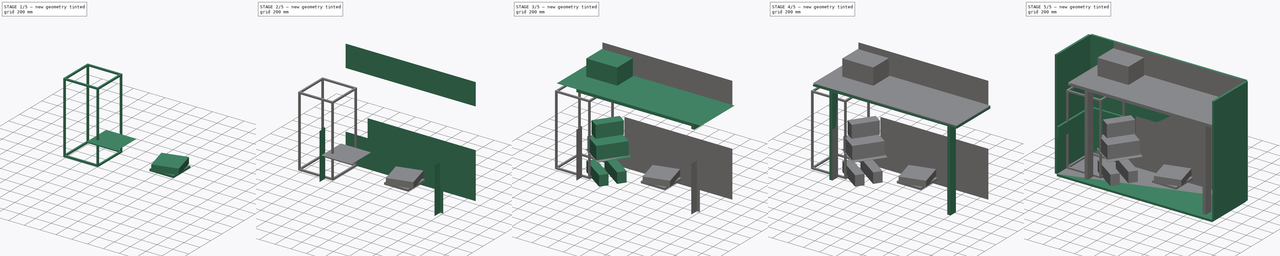
[diagram: build sequence overview — one tinted view per stage of 5, left to right]
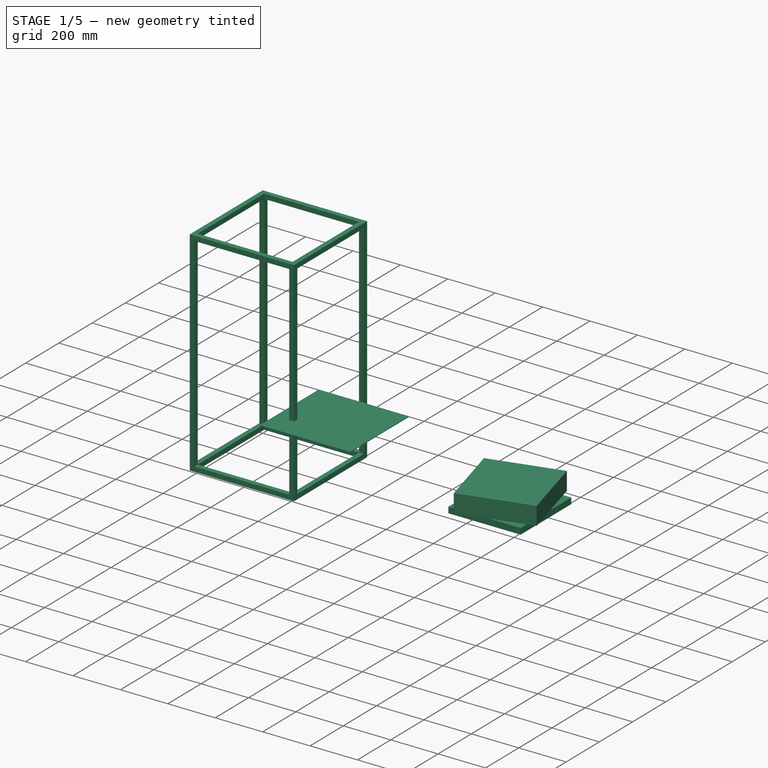
[diagram: stage 1 of 5 — iso view after this stage's code; geometry added in this stage tinted green]
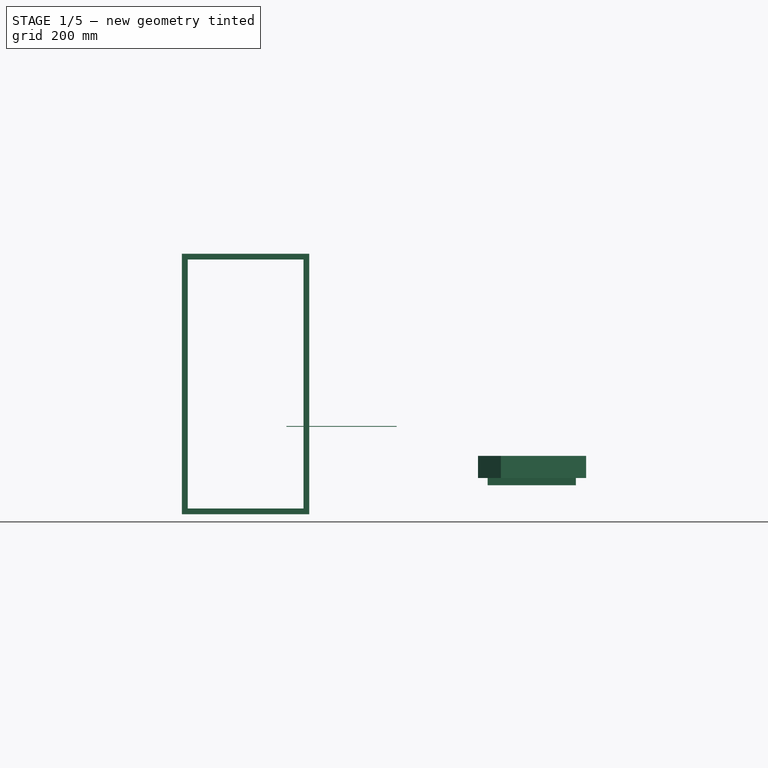
[diagram: stage 1 of 5 — front view after this stage's code; geometry added in this stage tinted green]
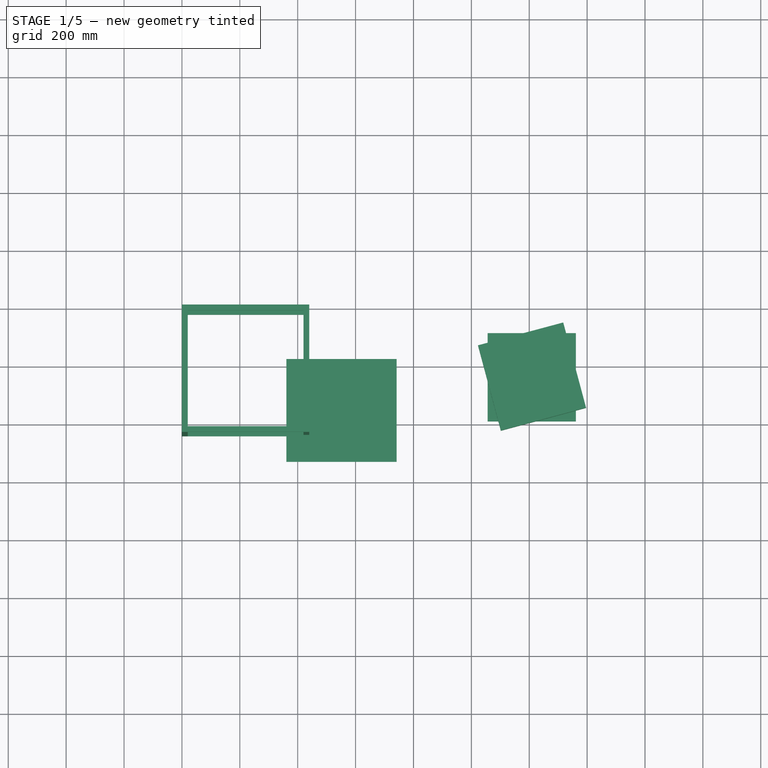
[diagram: stage 1 of 5 — top view after this stage's code; geometry added in this stage tinted green]
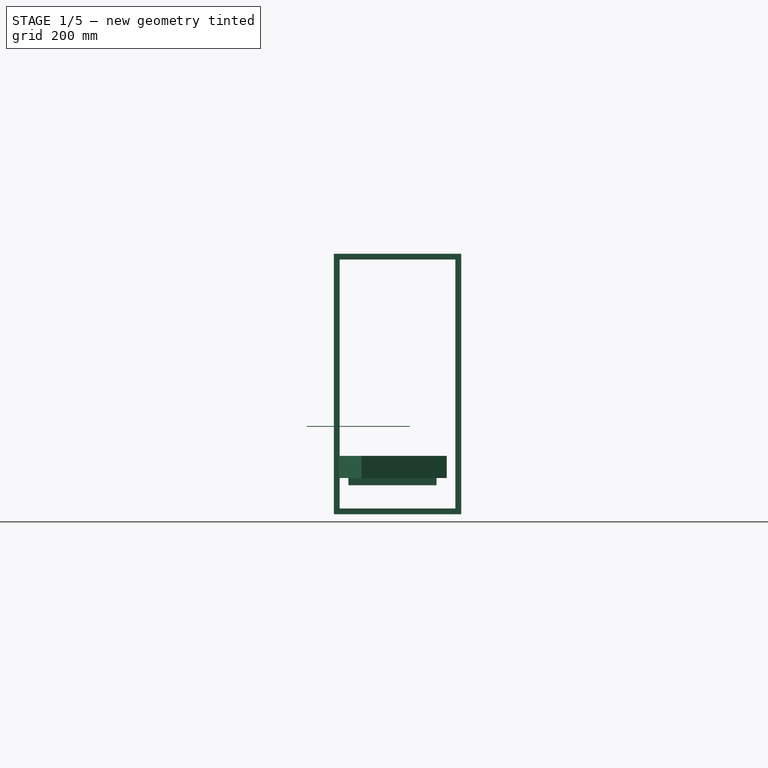
[diagram: stage 1 of 5 — right view after this stage's code; geometry added in this stage tinted green]
FCSTD DOCUMENT  (FreeCAD 1.1R20260108 (Git shallow))
Label: LabSpace
License: All rights reserved
LicenseURL: https://en.wikipedia.org/wiki/All_rights_reserved
objects: Part::Box×30, Part::MultiFuse×7, Sketcher::SketchObject×6, PartDesign::Pocket×5, App::Point×1, PartDesign::Pad×1, PartDesign::Body×1, App::DocumentObjectGroup×1
note: 68 computed .brp shape members not serialized (recipe doc carries the construction recipe); baked Part::Feature solids carry a one-line shape summary decoded from their .brp

FEATURE [App::Point] Origin001
  Role = Origin
FEATURE [Sketcher::SketchObject] Sketch
  ArcFitTolerance = 1e-06
  AttachmentSupport = -> [Origin]
  ExternalTypes = [0]
  FullyConstrained = true
  MakeInternals = false
  MapMode = 5
  Placement = pos=(0,0,0) rot=(1,0,0;1.5708rad)
  sketch-geometry (4):
    g0: LineSegment StartX=0 StartY=0 StartZ=0 EndX=440 EndY=0 EndZ=0
    g1: LineSegment StartX=440 StartY=0 StartZ=0 EndX=440 EndY=900 EndZ=0
    g2: LineSegment StartX=440 StartY=900 StartZ=0 EndX=0 EndY=900 EndZ=0
    g3: LineSegment StartX=0 StartY=900 StartZ=0 EndX=0 EndY=0 EndZ=0
  constraints (11):
    c: Coincident(g0,g1)
    c: Coincident(g1,g2)
    c: Coincident(g2,g3)
    c: Coincident(g3,g0)
    c: Horizontal(g0)
    c: Horizontal(g2)
    c: Vertical(g1)
    c: Vertical(g3)
    c: Coincident(g0,g-1)
    c: DistanceY(g1,g1) = 900
    c: DistanceX(g2,g2) = 440
FEATURE [PartDesign::Pad] Pad
  Direction = (0,-1,2e-16)
  Length = 440
  Length2 = 10
  Profile = -> Sketch
  ReferenceAxis = -> Sketch [N_Axis]
  Refine = true
  SideType = 0
  Suppressed = false
  Type = 0
  Type2 = 0
FEATURE [Sketcher::SketchObject] Sketch001
  ArcFitTolerance = 1e-06
  AttachmentSupport = -> [Pad]
  ExternalGeometry = -> [Pad]
  ExternalTypes = [0]
  FullyConstrained = true
  MakeInternals = false
  MapMode = 5
  Placement = pos=(0,-440,0) rot=(1,0,0;1.5708rad)
  sketch-geometry (8):
    g0: LineSegment StartX=20 StartY=20 StartZ=0 EndX=420 EndY=20 EndZ=0
    g1: LineSegment StartX=420 StartY=20 StartZ=0 EndX=420 EndY=880 EndZ=0
    g2: LineSegment StartX=420 StartY=880 StartZ=0 EndX=20 EndY=880 EndZ=0
    g3: LineSegment StartX=20 StartY=880 StartZ=0 EndX=20 EndY=20 EndZ=0
    g4: LineSegment StartX=440 StartY=900 StartZ=0 EndX=0 EndY=900 EndZ=0
    g5: LineSegment StartX=0 StartY=900 StartZ=0 EndX=0 EndY=0 EndZ=0
    g6: LineSegment StartX=0 StartY=0 StartZ=0 EndX=440 EndY=0 EndZ=0
    g7: LineSegment StartX=440 StartY=0 StartZ=0 EndX=440 EndY=900 EndZ=0
  constraints (22):
    c: Coincident(g0,g1)
    c: Coincident(g1,g2)
    c: Coincident(g2,g3)
    c: Coincident(g3,g0)
    c: Horizontal(g0)
    c: Horizontal(g2)
    c: Vertical(g1)
    c: Vertical(g3)
    c: DistanceX(g-6,g0) = 20
    c: DistanceY(g-6,g0) = 20
    c: DistanceX(g1,g-5) = 20
    c: DistanceY(g1,g-5) = 20
    c: Coincident(g4,g5)
    c: Coincident(g5,g6)
    c: Coincident(g6,g7)
    c: Coincident(g7,g4)
    c: Horizontal(g4)
    c: Horizontal(g6)
    c: Vertical(g5)
    c: Vertical(g7)
    c: Coincident(g4,g-5)
    c: Coincident(g5,g-6)
FEATURE [PartDesign::Pocket] Pocket
  BaseFeature = -> Pad
  Direction = (0,1,-2e-16)
  Length = 5
  Length2 = 5
  Profile = -> Sketch001
  ReferenceAxis = -> Sketch001 [N_Axis]
  Refine = true
  SideType = 0
  Suppressed = false
  Type = 1
  Type2 = 0
FEATURE [Sketcher::SketchObject] Sketch002
  ArcFitTolerance = 1e-06
  AttachmentSupport = -> [Pocket]
  ExternalGeometry = -> [Pocket]
  ExternalTypes = [0]
  FullyConstrained = true
  MakeInternals = false
  MapMode = 5
  Placement = pos=(440,0,0) rot=(0.57735,0.57735,0.57735;2.0944rad)
  sketch-geometry (8):
    g0: LineSegment StartX=-440 StartY=1.137e-13 StartZ=0 EndX=1.137e-13 EndY=1.137e-13 EndZ=0
    g1: LineSegment StartX=1.137e-13 StartY=1.137e-13 StartZ=0 EndX=1.137e-13 EndY=900 EndZ=0
    g2: LineSegment StartX=1.137e-13 StartY=900 StartZ=0 EndX=-440 EndY=900 EndZ=0
    g3: LineSegment StartX=-440 StartY=900 StartZ=0 EndX=-440 EndY=1.137e-13 EndZ=0
    g4: LineSegment StartX=-420 StartY=20 StartZ=0 EndX=-20 EndY=20 EndZ=0
    g5: LineSegment StartX=-20 StartY=20 StartZ=0 EndX=-20 EndY=880 EndZ=0
    g6: LineSegment StartX=-20 StartY=880 StartZ=0 EndX=-420 EndY=880 EndZ=0
    g7: LineSegment StartX=-420 StartY=880 StartZ=0 EndX=-420 EndY=20 EndZ=0
  constraints (22):
    c: Coincident(g0,g1)
    c: Coincident(g1,g2)
    c: Coincident(g2,g3)
    c: Coincident(g3,g0)
    c: Horizontal(g0)
    c: Horizontal(g2)
    c: Vertical(g1)
    c: Vertical(g3)
    c: Coincident(g0,g-6)
    c: Coincident(g1,g-5)
    c: Coincident(g4,g5)
    c: Coincident(g5,g6)
    c: Coincident(g6,g7)
    c: Coincident(g7,g4)
    c: Horizontal(g4)
    c: Horizontal(g6)
    c: Vertical(g5)
    c: Vertical(g7)
    c: DistanceX(g0,g4) = 20
    c: DistanceY(g0,g4) = 20
    c: DistanceX(g5,g1) = 20
    c: DistanceY(g5,g1) = 20
FEATURE [PartDesign::Pocket] Pocket001
  BaseFeature = -> Pocket
  Direction = (-1,0,0)
  Length = 5
  Length2 = 5
  Profile = -> Sketch002
  ReferenceAxis = -> Sketch002 [N_Axis]
  Refine = true
  SideType = 0
  Suppressed = false
  Type = 3
  Type2 = 0
  UpToFace = -> Pocket [Face9]
FEATURE [Sketcher::SketchObject] Sketch003
  ArcFitTolerance = 1e-06
  AttachmentSupport = -> [Pocket001]
  ExternalGeometry = -> [Pocket001]
  ExternalTypes = [0]
  FullyConstrained = true
  MakeInternals = false
  MapMode = 5
  Placement = pos=(0,0,0) rot=(0.57735,-0.57735,-0.57735;2.0944rad)
  sketch-geometry (8):
    g0: LineSegment StartX=0 StartY=0 StartZ=0 EndX=440 EndY=0 EndZ=0
    g1: LineSegment StartX=440 StartY=0 StartZ=0 EndX=440 EndY=900 EndZ=0
    g2: LineSegment StartX=440 StartY=900 StartZ=0 EndX=0 EndY=900 EndZ=0
    g3: LineSegment StartX=0 StartY=900 StartZ=0 EndX=0 EndY=0 EndZ=0
    g4: LineSegment StartX=20 StartY=20 StartZ=0 EndX=420 EndY=20 EndZ=0
    g5: LineSegment StartX=420 StartY=20 StartZ=0 EndX=420 EndY=880 EndZ=0
    g6: LineSegment StartX=420 StartY=880 StartZ=0 EndX=20 EndY=880 EndZ=0
    g7: LineSegment StartX=20 StartY=880 StartZ=0 EndX=20 EndY=20 EndZ=0
  constraints (22):
    c: Coincident(g0,g1)
    c: Coincident(g1,g2)
    c: Coincident(g2,g3)
    c: Coincident(g3,g0)
    c: Horizontal(g0)
    c: Horizontal(g2)
    c: Vertical(g1)
    c: Vertical(g3)
    c: Coincident(g0,g-5)
    c: Coincident(g1,g-6)
    c: Coincident(g4,g5)
    c: Coincident(g5,g6)
    c: Coincident(g6,g7)
    c: Coincident(g7,g4)
    c: Horizontal(g4)
    c: Horizontal(g6)
    c: Vertical(g5)
    c: Vertical(g7)
    c: DistanceX(g0,g4) = 20
    c: DistanceY(g0,g4) = 20
    c: DistanceX(g5,g1) = 20
    c: DistanceY(g5,g1) = 20
FEATURE [PartDesign::Pocket] Pocket002
  BaseFeature = -> Pocket001
  Direction = (1,0,0)
  Length = 5
  Length2 = 5
  Profile = -> Sketch003
  ReferenceAxis = -> Sketch003 [N_Axis]
  Refine = true
  SideType = 0
  Suppressed = false
  Type = 3
  Type2 = 0
  UpToFace = -> Pocket001 [Face9]
FEATURE [Sketcher::SketchObject] Sketch004
  ArcFitTolerance = 1e-06
  AttachmentSupport = -> [Pocket002]
  ExternalGeometry = -> [Pocket002]
  ExternalTypes = [0]
  FullyConstrained = true
  MakeInternals = false
  MapMode = 5
  Placement = pos=(0,1.998e-13,900) rot=(0,0,1;0rad)
  sketch-geometry (8):
    g0: LineSegment StartX=0 StartY=0 StartZ=0 EndX=0 EndY=-440 EndZ=0
    g1: LineSegment StartX=0 StartY=-440 StartZ=0 EndX=440 EndY=-440 EndZ=0
    g2: LineSegment StartX=440 StartY=-440 StartZ=0 EndX=440 EndY=0 EndZ=0
    g3: LineSegment StartX=440 StartY=0 StartZ=0 EndX=0 EndY=0 EndZ=0
    g4: LineSegment StartX=20 StartY=-20 StartZ=0 EndX=20 EndY=-420 EndZ=0
    g5: LineSegment StartX=20 StartY=-420 StartZ=0 EndX=420 EndY=-420 EndZ=0
    g6: LineSegment StartX=420 StartY=-420 StartZ=0 EndX=420 EndY=-20 EndZ=0
    g7: LineSegment StartX=420 StartY=-20 StartZ=0 EndX=20 EndY=-20 EndZ=0
  constraints (22):
    c: Coincident(g0,g1)
    c: Coincident(g1,g2)
    c: Coincident(g2,g3)
    c: Coincident(g3,g0)
    c: Vertical(g0)
    c: Vertical(g2)
    c: Horizontal(g1)
    c: Horizontal(g3)
    c: Coincident(g0,g-5)
    c: Coincident(g1,g-6)
    c: Coincident(g4,g5)
    c: Coincident(g5,g6)
    c: Coincident(g6,g7)
    c: Coincident(g7,g4)
    c: Vertical(g4)
    c: Vertical(g6)
    c: Horizontal(g5)
    c: Horizontal(g7)
    c: DistanceY(g4,g0) = 20
    c: DistanceX(g0,g4) = 20
    c: DistanceX(g5,g1) = 20
    c: DistanceY(g1,g5) = 20
FEATURE [PartDesign::Pocket] Pocket003
  BaseFeature = -> Pocket002
  Direction = (0,0,-1)
  Length = 5
  Length2 = 5
  Profile = -> Sketch004
  ReferenceAxis = -> Sketch004 [N_Axis]
  Refine = true
  SideType = 0
  Suppressed = false
  Type = 3
  Type2 = 0
  UpToFace = -> Pocket002 [Face15]
FEATURE [Sketcher::SketchObject] Sketch005
  ArcFitTolerance = 1e-06
  AttachmentSupport = -> [Pocket003]
  ExternalGeometry = -> [Pocket003]
  ExternalTypes = [0]
  FullyConstrained = true
  MakeInternals = false
  MapMode = 5
  Placement = pos=(0,0,0) rot=(1,0,0;3.14159rad)
  sketch-geometry (8):
    g0: LineSegment StartX=0 StartY=0 StartZ=0 EndX=440 EndY=0 EndZ=0
    g1: LineSegment StartX=440 StartY=0 StartZ=0 EndX=440 EndY=440 EndZ=0
    g2: LineSegment StartX=440 StartY=440 StartZ=0 EndX=0 EndY=440 EndZ=0
    g3: LineSegment StartX=0 StartY=440 StartZ=0 EndX=0 EndY=0 EndZ=0
    g4: LineSegment StartX=20 StartY=20 StartZ=0 EndX=420 EndY=20 EndZ=0
    g5: LineSegment StartX=420 StartY=20 StartZ=0 EndX=420 EndY=420 EndZ=0
    g6: LineSegment StartX=420 StartY=420 StartZ=0 EndX=20 EndY=420 EndZ=0
    g7: LineSegment StartX=20 StartY=420 StartZ=0 EndX=20 EndY=20 EndZ=0
  constraints (22):
    c: Coincident(g0,g1)
    c: Coincident(g1,g2)
    c: Coincident(g2,g3)
    c: Coincident(g3,g0)
    c: Horizontal(g0)
    c: Horizontal(g2)
    c: Vertical(g1)
    c: Vertical(g3)
    c: Coincident(g0,g-5)
    c: Coincident(g1,g-6)
    c: Coincident(g4,g5)
    c: Coincident(g5,g6)
    c: Coincident(g6,g7)
    c: Coincident(g7,g4)
    c: Horizontal(g4)
    c: Horizontal(g6)
    c: Vertical(g5)
    c: Vertical(g7)
    c: DistanceX(g0,g4) = 20
    c: DistanceY(g0,g4) = 20
    c: DistanceX(g5,g1) = 20
    c: DistanceY(g5,g1) = 20
FEATURE [PartDesign::Pocket] Pocket004
  BaseFeature = -> Pocket003
  Direction = (0,0,1)
  Length = 5
  Length2 = 5
  Profile = -> Sketch005
  ReferenceAxis = -> Sketch005 [N_Axis]
  Refine = true
  SideType = 0
  Suppressed = false
  Type = 3
  Type2 = 0
  UpToFace = -> Pocket003 [Face9]
FEATURE [PartDesign::Body] Body  label="AluminumTSlot"
  AllowCompound = false
  Group = -> [Sketch,Pad,Sketch001,Pocket,Sketch002,Pocket001,Sketch003,Pocket002,Sketch004,Pocket003,Sketch005,Pocket004]
  Origin = -> Origin
  Placement = pos=(986.2,-20,0) rot=(0,0,1;0rad)
  Tip = -> Pocket004
FEATURE [Part::Box] Box029  label="WoodBoard"
  AttacherType = Attacher::AttachEngine3D
  Height = 25.4
  Length = 304.8
  Placement = pos=(1056.2,-390,100) rot=(0,0,1;0rad)
  Width = 304.8
FEATURE [Part::Box] Box030  label="WoodWeightTuner"
  AttacherType = Attacher::AttachEngine3D
  Height = 76.2
  Length = 304.8
  Placement = pos=(1101.92,-423.02,125.4) rot=(0,0,1;0.261799rad)
  Width = 304.8
FEATURE [App::DocumentObjectGroup] Group  label="VibrationIsolation"
  Group = -> [Body,Box029,Box030]
FEATURE [Part::Box] Box031  label="Shelf"
  AttacherType = Attacher::AttachEngine3D
  Height = 2.54
  Length = 381
  Placement = pos=(360.68,-533.4,302.26) rot=(0,0,1;0rad)
  Width = 355.6
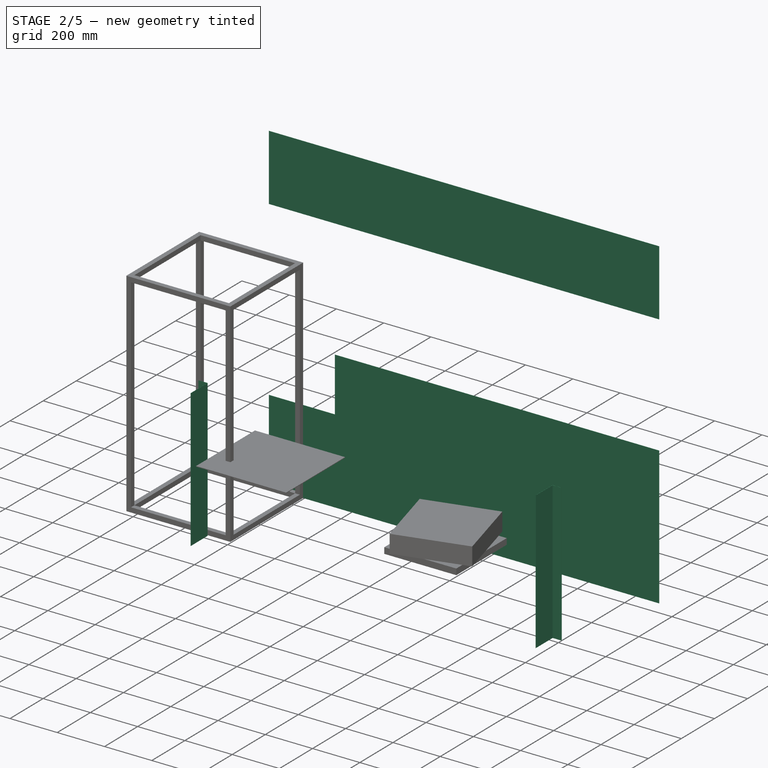
[diagram: stage 2 of 5 — iso view after this stage's code; geometry added in this stage tinted green]
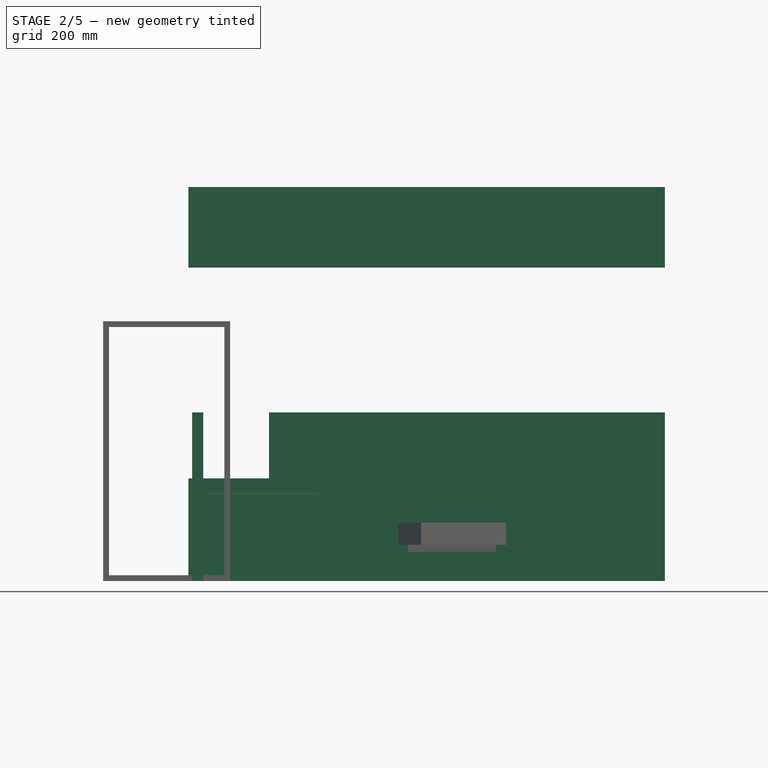
[diagram: stage 2 of 5 — front view after this stage's code; geometry added in this stage tinted green]
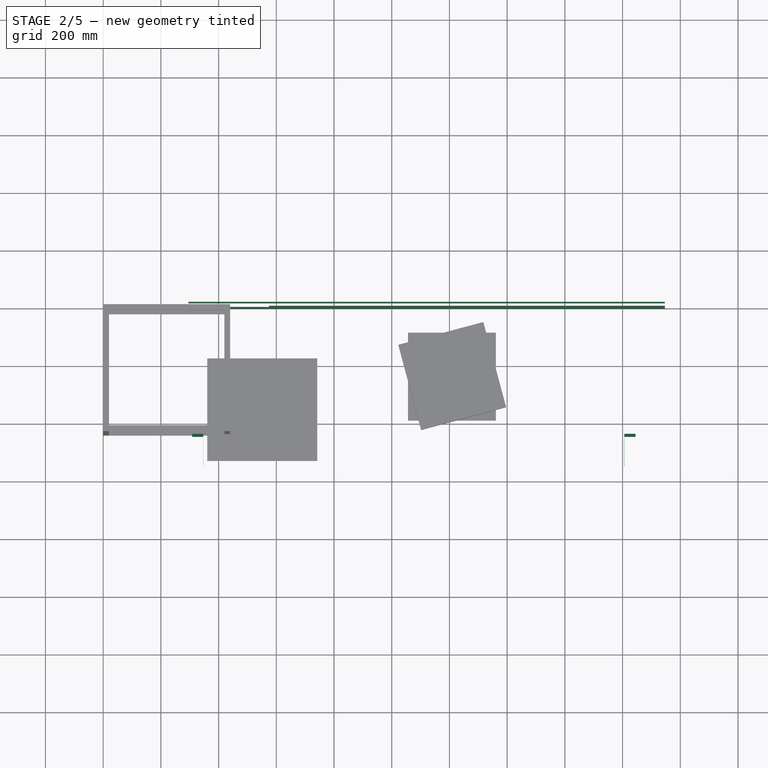
[diagram: stage 2 of 5 — top view after this stage's code; geometry added in this stage tinted green]
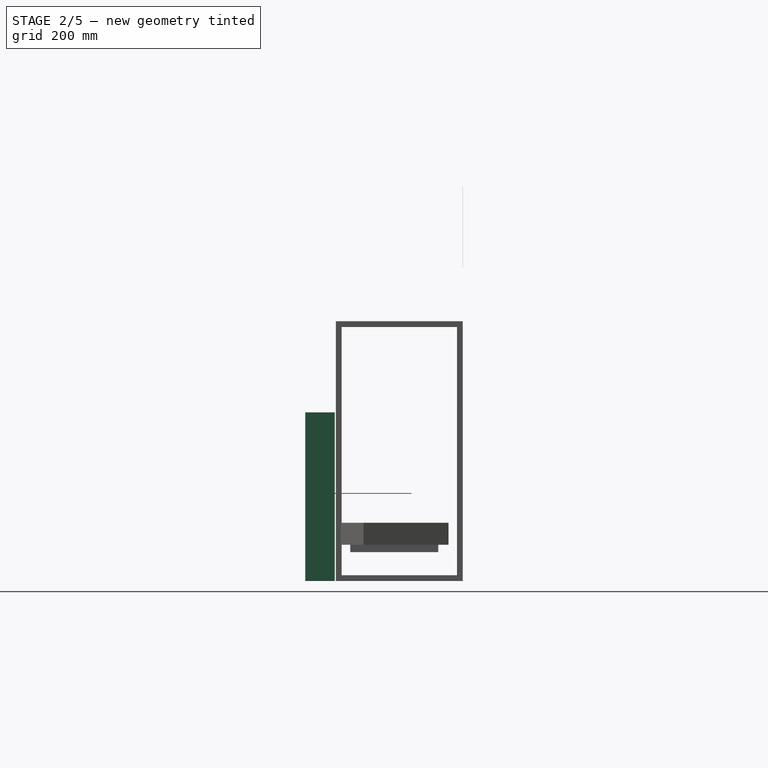
[diagram: stage 2 of 5 — right view after this stage's code; geometry added in this stage tinted green]
FEATURE [Part::Box] Box020  label="Cube009"
  AttacherType = Attacher::AttachEngine3D
  Height = 279.4
  Length = 1651
  Placement = pos=(295.402,-0.762,1085.85) rot=(0,0,1;0rad)
  Width = 0.762
  expr: .Placement.Base.x = 77.63 in - 66 in
FEATURE [Part::Box] Box021  label="Cube010"
  AttacherType = Attacher::AttachEngine3D
  Height = 584.2
  Length = 1371.6
  Placement = pos=(574.802,-0.762,0) rot=(0,0,1;0rad)
  Width = 0.762
  expr: .Placement.Base.x = 77.63 in - 55 in
FEATURE [Part::Box] Box022  label="Cube011"
  AttacherType = Attacher::AttachEngine3D
  Height = 355.6
  Length = 279.4
  Placement = pos=(295.402,-0.762,0) rot=(0,0,1;0rad)
  Width = 0.762
  expr: .Placement.Base.x = 77.63 in - 66 in
  expr: Length = 11 in
FEATURE [Part::Box] Box023  label="Cube012"
  AttacherType = Attacher::AttachEngine3D
  Height = 584.2
  Length = 38.1
  Placement = pos=(308.102,-444.5,0) rot=(0,0,1;0rad)
  Width = 0.762
FEATURE [Part::Box] Box025  label="Cube014"
  AttacherType = Attacher::AttachEngine3D
  Height = 584.2
  Length = 0.762
  Placement = pos=(346.202,-546.1,0) rot=(0,0,1;0rad)
  Width = 101.6
FEATURE [Part::Box] Box026  label="Cube015"
  AttacherType = Attacher::AttachEngine3D
  Height = 584.2
  Length = 38.1
  Placement = pos=(1806.7,-444.5,0) rot=(0,0,1;0rad)
  Width = 0.762
  expr: .Placement.Base.x = 12.13 in + 59 in
FEATURE [Part::Box] Box027  label="Cube016"
  AttacherType = Attacher::AttachEngine3D
  Height = 584.2
  Length = 0.762
  Placement = pos=(1805.94,-546.1,0) rot=(0,0,1;0rad)
  Width = 101.6
  expr: .Placement.Base.x = 12.1 in + 59 in
FEATURE [Part::MultiFuse] Fusion006  label="WallProtection"
  Refine = true
  Shapes = -> [Box027,Box020,Box021,Box022,Box023,Box025,Box026]
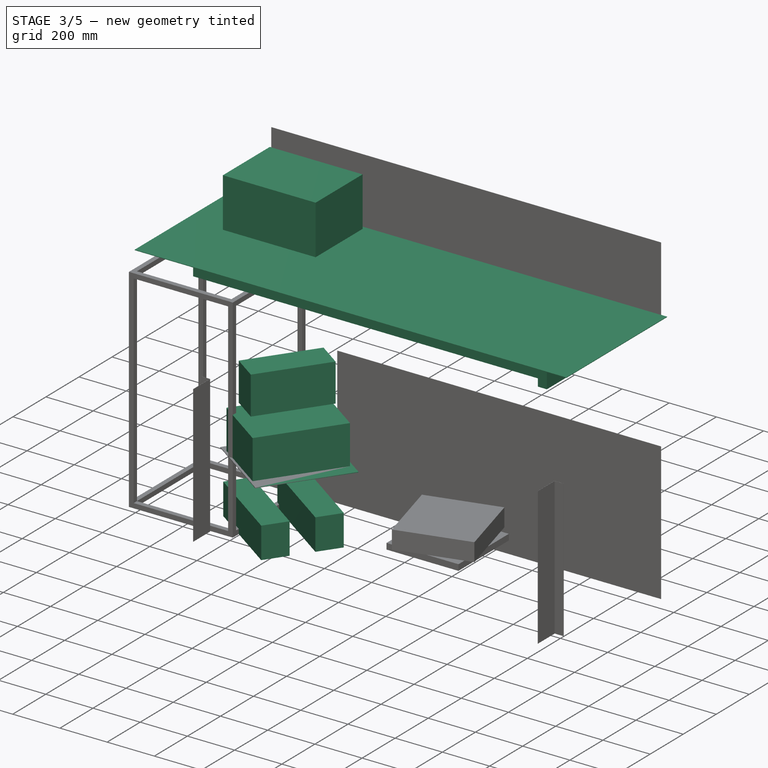
[diagram: stage 3 of 5 — iso view after this stage's code; geometry added in this stage tinted green]
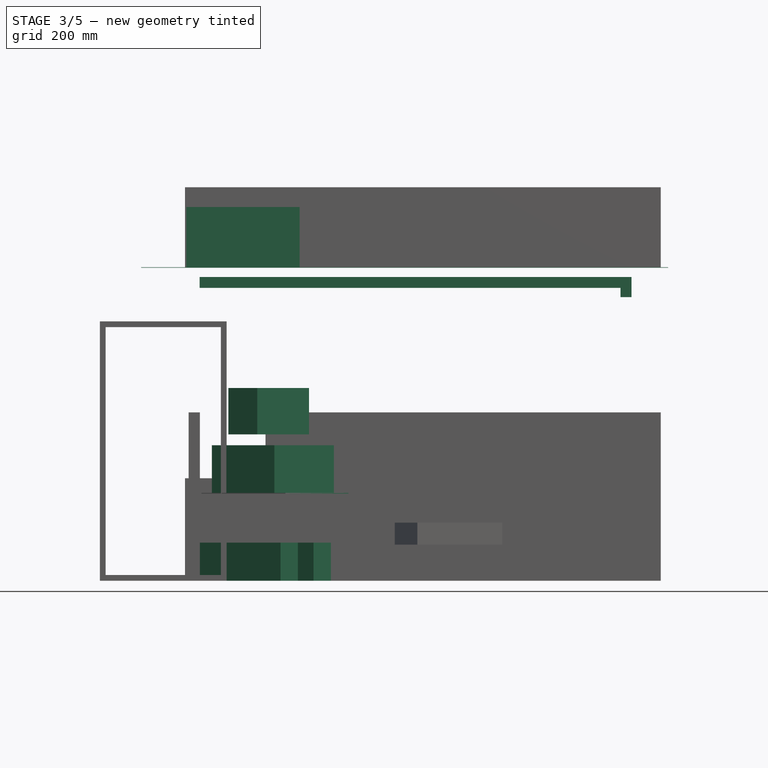
[diagram: stage 3 of 5 — front view after this stage's code; geometry added in this stage tinted green]
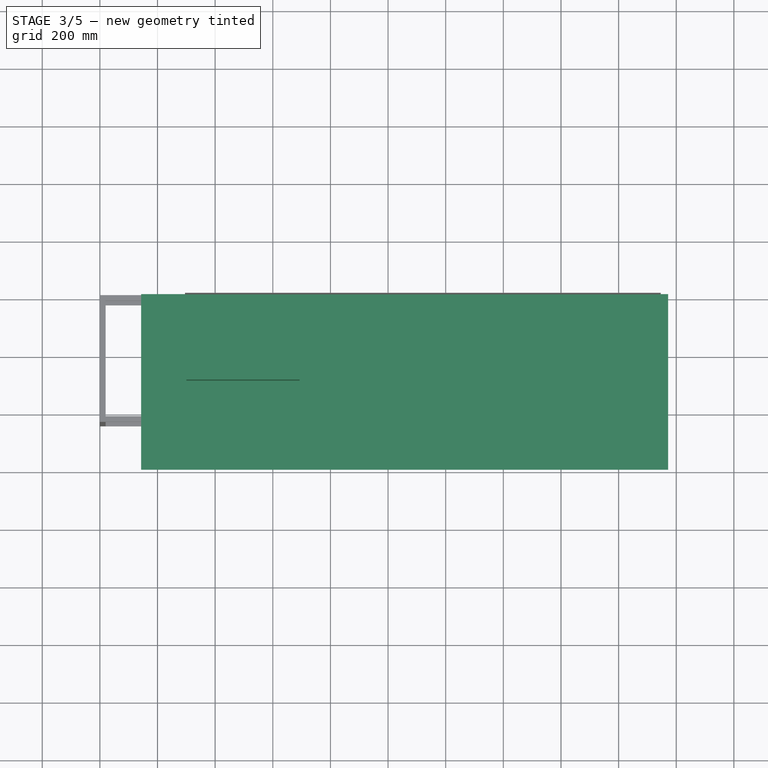
[diagram: stage 3 of 5 — top view after this stage's code; geometry added in this stage tinted green]
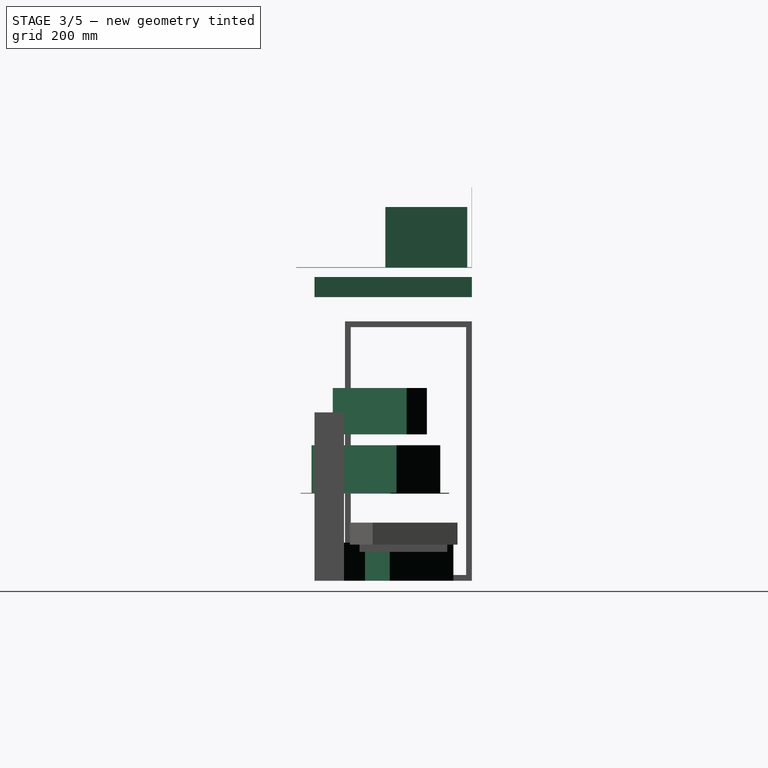
[diagram: stage 3 of 5 — right view after this stage's code; geometry added in this stage tinted green]
FEATURE [Part::Box] Box013  label="Cube007"
  AttacherType = Attacher::AttachEngine3D
  Height = 69.85
  Length = 38.1
  Placement = pos=(1806.7,-546.1,984.25) rot=(0,0,1;0rad)
  Width = 546.1
  expr: .Placement.Base.x = 77.63 in - 6.5 in
  expr: .Placement.Base.z = 38.75 in
  expr: Height = 41.5 in - 38.75 in
FEATURE [Part::Box] Box014  label="Cube008"
  AttacherType = Attacher::AttachEngine3D
  Height = 38.1
  Length = 1460.5
  Placement = pos=(346.202,-546.1,1016) rot=(0,0,1;0rad)
  Width = 101.6
  expr: .Placement.Base.x = 77.63 in - 64 in
  expr: Length = 64 in - 6.5 in
FEATURE [Part::Box] Box015  label="SiliconeMat"
  AttacherType = Attacher::AttachEngine3D
  Height = 2.032
  Length = 1828.8
  Placement = pos=(143.002,-609.6,1085.85) rot=(0,0,1;0rad)
  Width = 609.6
  expr: .Placement.Base.x = 77.63 in - 72 in
FEATURE [Part::Box] Box016  label="ReflowOven"
  AttacherType = Attacher::AttachEngine3D
  Height = 210.82
  Length = 392.938
  Placement = pos=(300,-300,1085.85) rot=(0,0,1;0rad)
  Width = 283.972
FEATURE [Part::Box] Box017  label="Matsusada_R4G650-0.1-Negative"
  AttacherType = Attacher::AttachEngine3D
  Height = 132
  Length = 385
  Placement = pos=(400,-100,0) rot=(0,0,1;-1.5708rad)
  Width = 105
FEATURE [Part::Box] Box018  label="Tekpower_TP-3005D-3"
  AttacherType = Attacher::AttachEngine3D
  Height = 165.1
  Length = 359.918
  Placement = pos=(370,-480,304.8) rot=(0,0,1;0rad)
  Width = 264.922
FEATURE [Part::Box] Box019  label="Matsusada_R4G650-0.1-Positive"
  AttacherType = Attacher::AttachEngine3D
  Height = 132
  Length = 385
  Placement = pos=(600,-100,0) rot=(0,0,1;-1.5708rad)
  Width = 105
FEATURE [Part::Box] Box028  label="Rigol_DS1102Z-E"
  AttacherType = Attacher::AttachEngine3D
  Height = 160.8
  Length = 313.1
  Placement = pos=(546.1,-482.6,508) rot=(0,0,1;0.959931rad)
  Width = 122.4
FEATURE [Part::MultiFuse] Fusion005  label="PowerSupplies"
  Placement = pos=(0,-584.2,0) rot=(0,0,1;0.959931rad)
  Refine = true
  Shapes = -> [Box018,Box019,Box017,Box031]
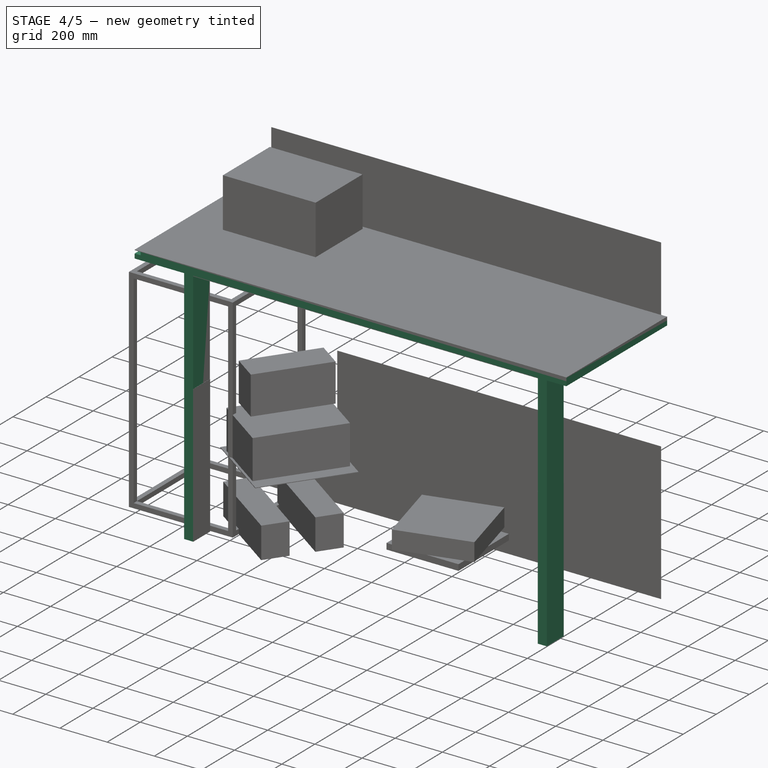
[diagram: stage 4 of 5 — iso view after this stage's code; geometry added in this stage tinted green]
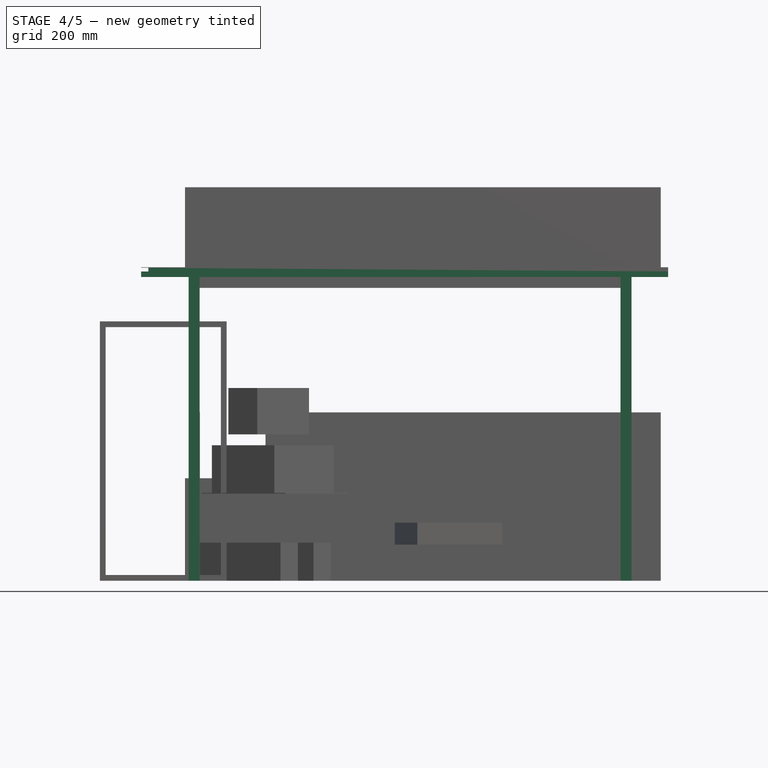
[diagram: stage 4 of 5 — front view after this stage's code; geometry added in this stage tinted green]
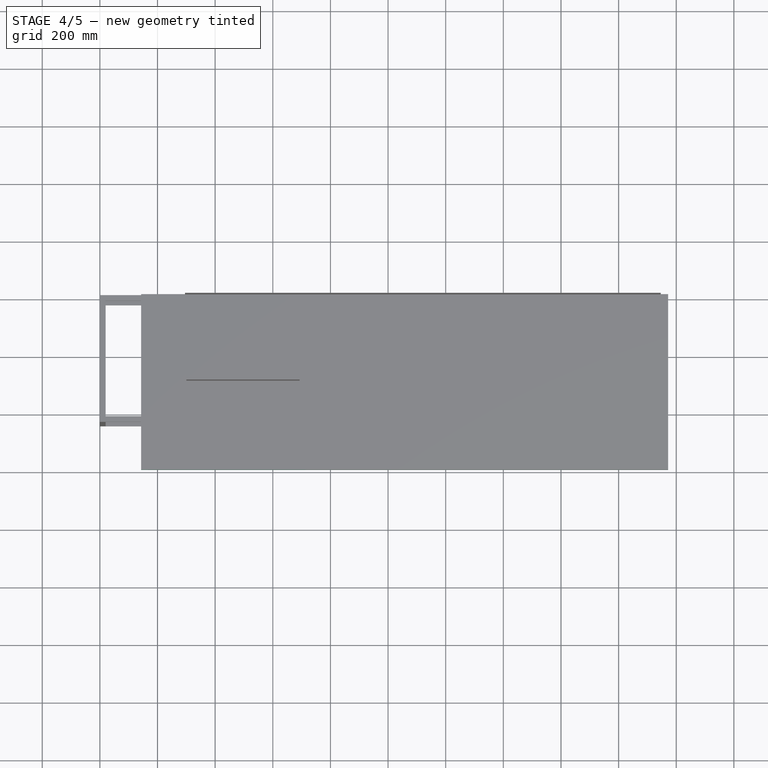
[diagram: stage 4 of 5 — top view after this stage's code; geometry added in this stage tinted green]
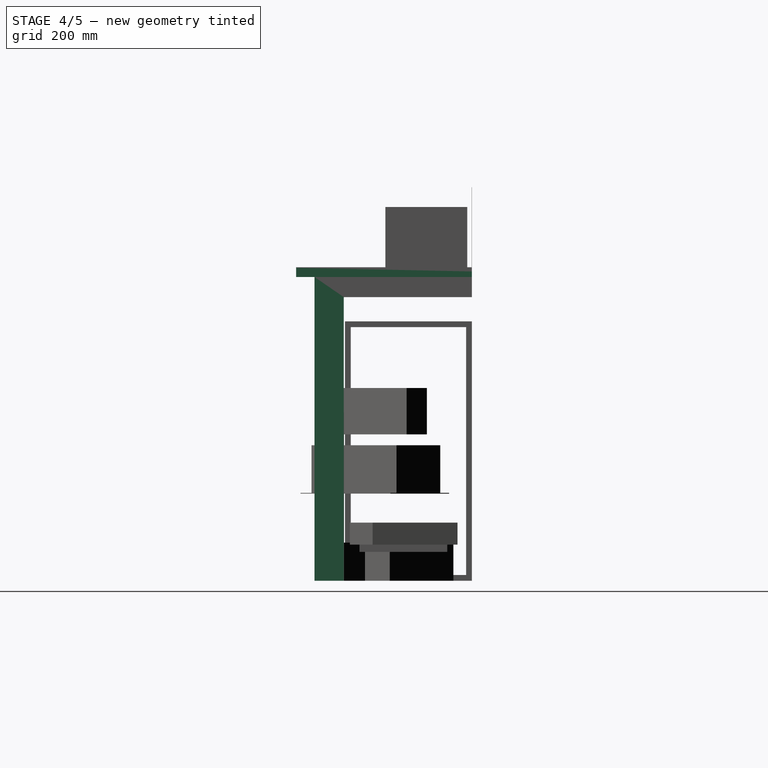
[diagram: stage 4 of 5 — right view after this stage's code; geometry added in this stage tinted green]
FEATURE [Part::Box] Box008  label="Cube002"
  AttacherType = Attacher::AttachEngine3D
  Height = 19.05
  Length = 1828.8
  Placement = pos=(142.875,-609.6,1054.1) rot=(0,0,1;0rad)
  Width = 609.6
FEATURE [Part::Box] Box009  label="Cube003"
  AttacherType = Attacher::AttachEngine3D
  Height = 12.7
  Length = 1803.4
  Placement = pos=(168.402,-609.6,1073.15) rot=(0,0,1;0rad)
  Width = 609.6
  expr: .Placement.Base.x = 5.63 in + 1 in
  expr: .Placement.Base.z = 41.5 in + 0.75 in
  expr: Length = 72 in - 1 in
FEATURE [Part::Box] Box010  label="Cube004"
  AttacherType = Attacher::AttachEngine3D
  Height = 1054.1
  Length = 38.1
  Placement = pos=(308.102,-546.1,0) rot=(0,0,1;0rad)
  Width = 101.6
  expr: .Placement.Base.x = 77.63 in - 65.5 in
FEATURE [Part::MultiFuse] Fusion  label="TableSurface"
  Refine = true
  Shapes = -> [Box008,Box009]
FEATURE [Part::Box] Box011  label="Cube005"
  AttacherType = Attacher::AttachEngine3D
  Height = 69.85
  Length = 38.1
  Placement = pos=(308.102,-546.1,984.25) rot=(0,0,1;0rad)
  Width = 546.1
  expr: .Placement.Base.x = 77.63 in - 65.5 in
  expr: .Placement.Base.z = 38.75 in
  expr: Height = 41.5 in - 38.75 in
FEATURE [Part::MultiFuse] Fusion002  label="TableLeg"
  Refine = true
  Shapes = -> [Box010,Box011]
FEATURE [Part::Box] Box012  label="Cube006"
  AttacherType = Attacher::AttachEngine3D
  Height = 1054.1
  Length = 38.1
  Placement = pos=(1806.7,-546.1,0) rot=(0,0,1;0rad)
  Width = 101.6
  expr: .Placement.Base.x = 77.63 in - 6.5 in
FEATURE [Part::MultiFuse] Fusion003  label="TableLeg2"
  Refine = true
  Shapes = -> [Box012,Box013]
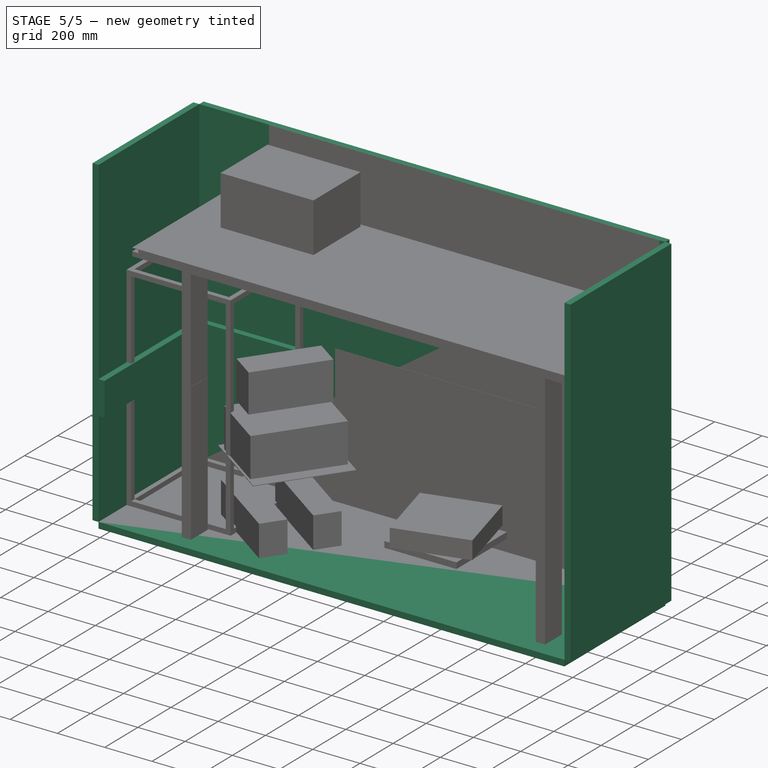
[diagram: stage 5 of 5 — iso view after this stage's code; geometry added in this stage tinted green]
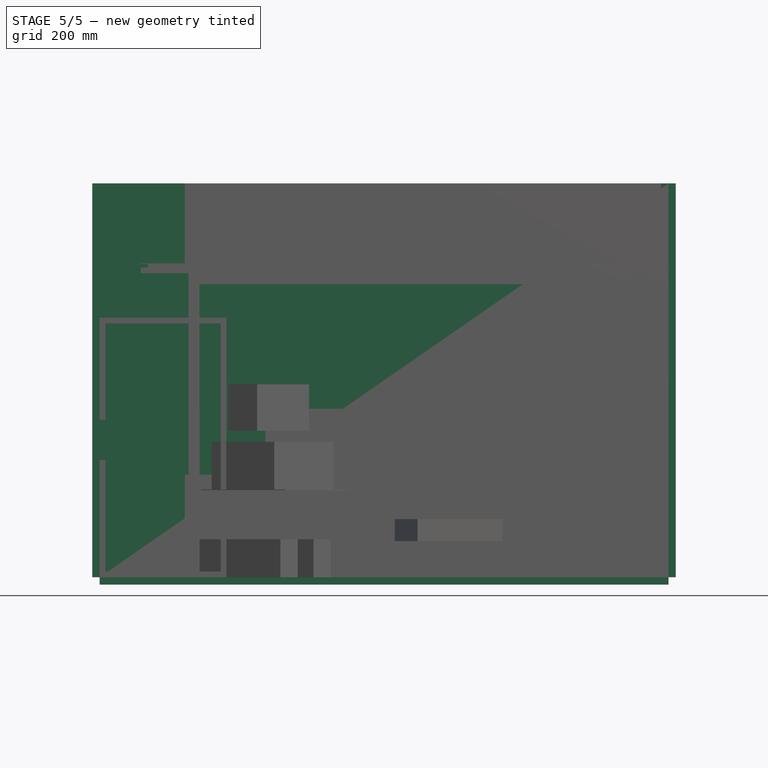
[diagram: stage 5 of 5 — front view after this stage's code; geometry added in this stage tinted green]
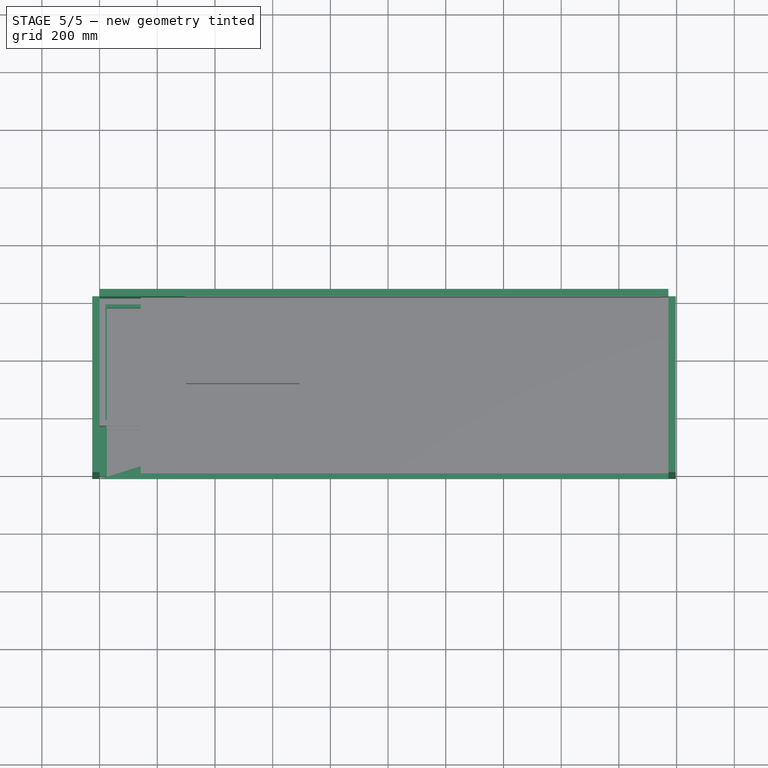
[diagram: stage 5 of 5 — top view after this stage's code; geometry added in this stage tinted green]
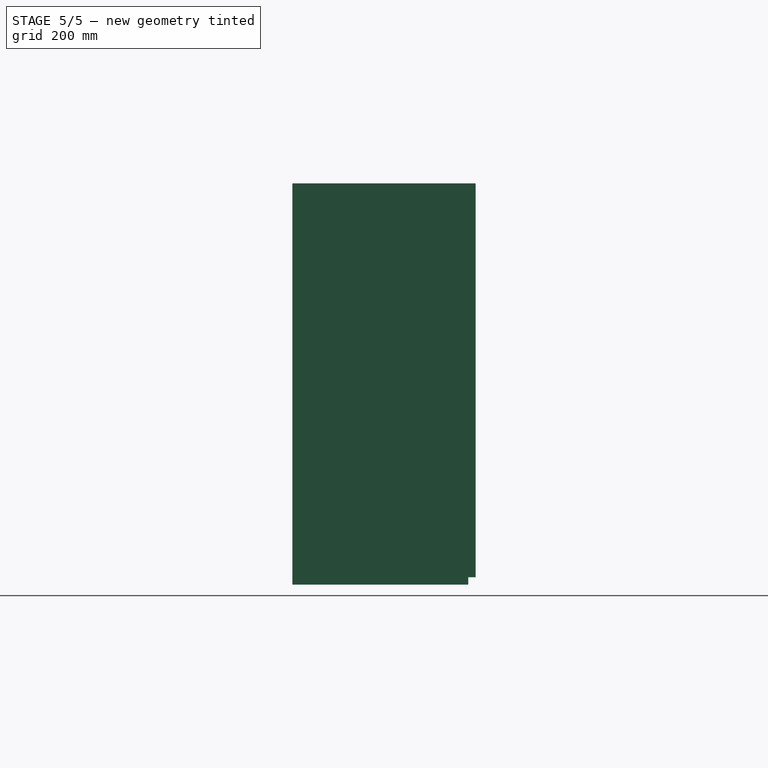
[diagram: stage 5 of 5 — right view after this stage's code; geometry added in this stage tinted green]
FEATURE [Part::Box] Box  label="Concrete"
  AttacherType = Attacher::AttachEngine3D
  Height = 25.4
  Length = 1971.8
  Placement = pos=(0,-609.6,-25.4) rot=(0,0,1;0rad)
  Width = 609.6
FEATURE [Part::Box] Box001  label="DrywallBack"
  AttacherType = Attacher::AttachEngine3D
  Height = 1365.25
  Length = 1971.67
  Width = 25.4
FEATURE [Part::Box] Box002  label="DrywallLeft"
  AttacherType = Attacher::AttachEngine3D
  Height = 1365.25
  Length = 25.4
  Placement = pos=(-25.4,-609.6,0) rot=(0,0,1;0rad)
  Width = 609.6
FEATURE [Part::Box] Box004  label="Refridgerator"
  AttacherType = Attacher::AttachEngine3D
  Height = 1365.25
  Length = 25.4
  Placement = pos=(1971.67,-609.6,0) rot=(0,0,1;0rad)
  Width = 609.6
FEATURE [Part::Box] Box005  label="Cube"
  AttacherType = Attacher::AttachEngine3D
  Height = 139.7
  Length = 495.3
  Placement = pos=(0,-25.4,406.4) rot=(0,0,1;0rad)
  Width = 25.4
FEATURE [Part::Box] Box006  label="Cube001"
  AttacherType = Attacher::AttachEngine3D
  Height = 139.7
  Length = 25.4
  Placement = pos=(0,-609.6,406.4) rot=(0,0,1;0rad)
  Width = 609.6
FEATURE [Part::MultiFuse] Fusion001  label="WallElectricalCord"
  Refine = true
  Shapes = -> [Box005,Box006]
FEATURE [Part::Box] Box007  label="WallElectricalBox"
  AttacherType = Attacher::AttachEngine3D
  Height = 104.775
  Length = 104.775
  Placement = pos=(444.5,-76.2,381) rot=(0,0,1;0rad)
  Width = 76.2
FEATURE [Part::MultiFuse] Fusion004  label="Table"
  Refine = true
  Shapes = -> [Fusion,Fusion002,Fusion003,Box014]
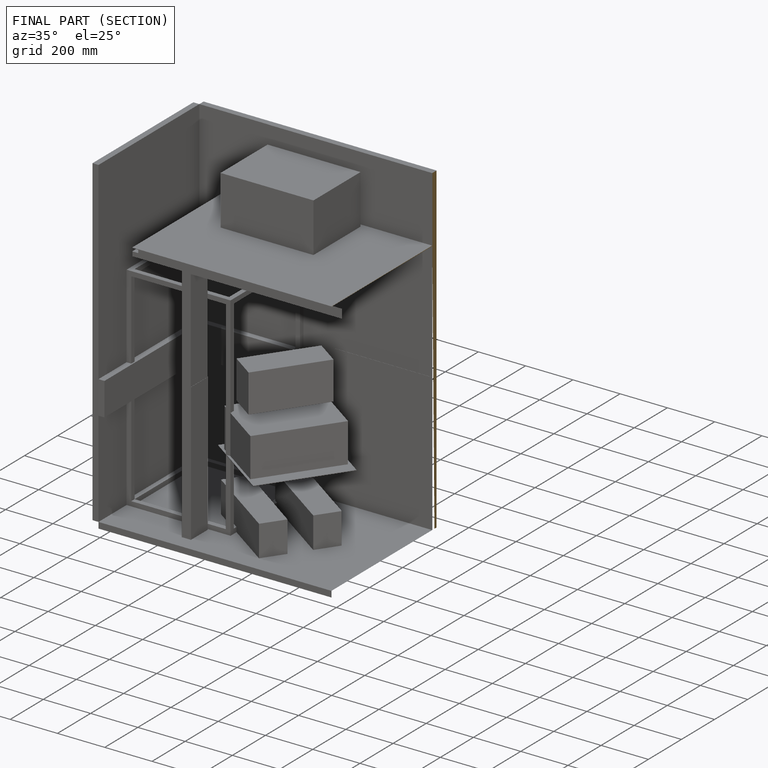
[diagram: finished part — half-section view (interior)]
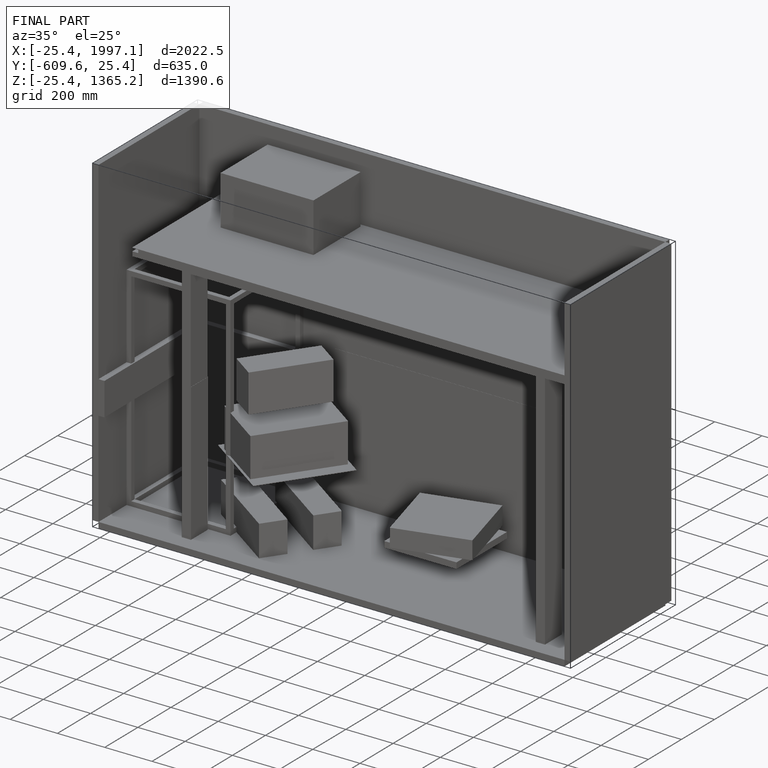
[diagram: finished part — iso view with bounding-box wireframe]
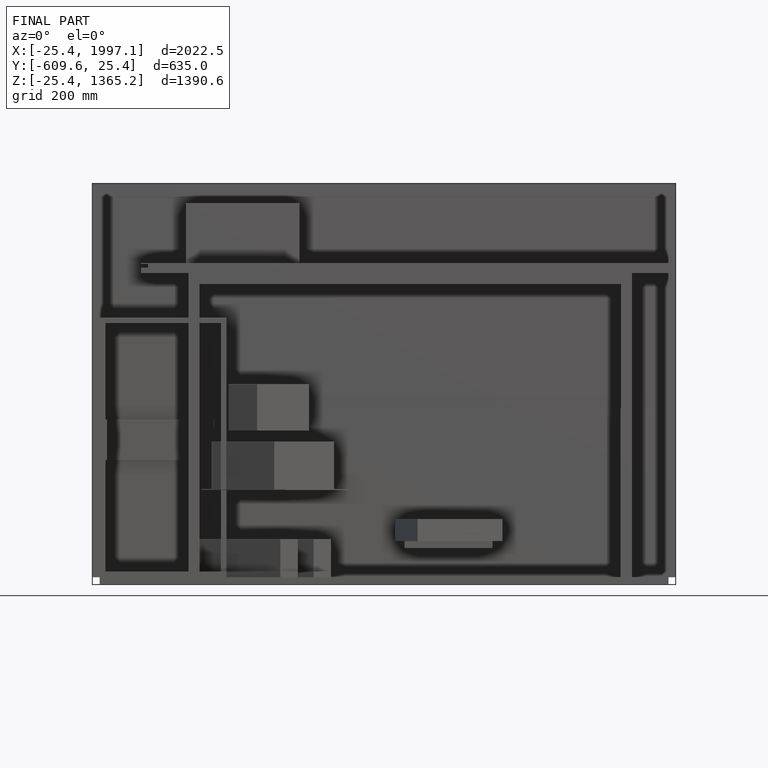
[diagram: finished part — front view with bounding-box wireframe]
